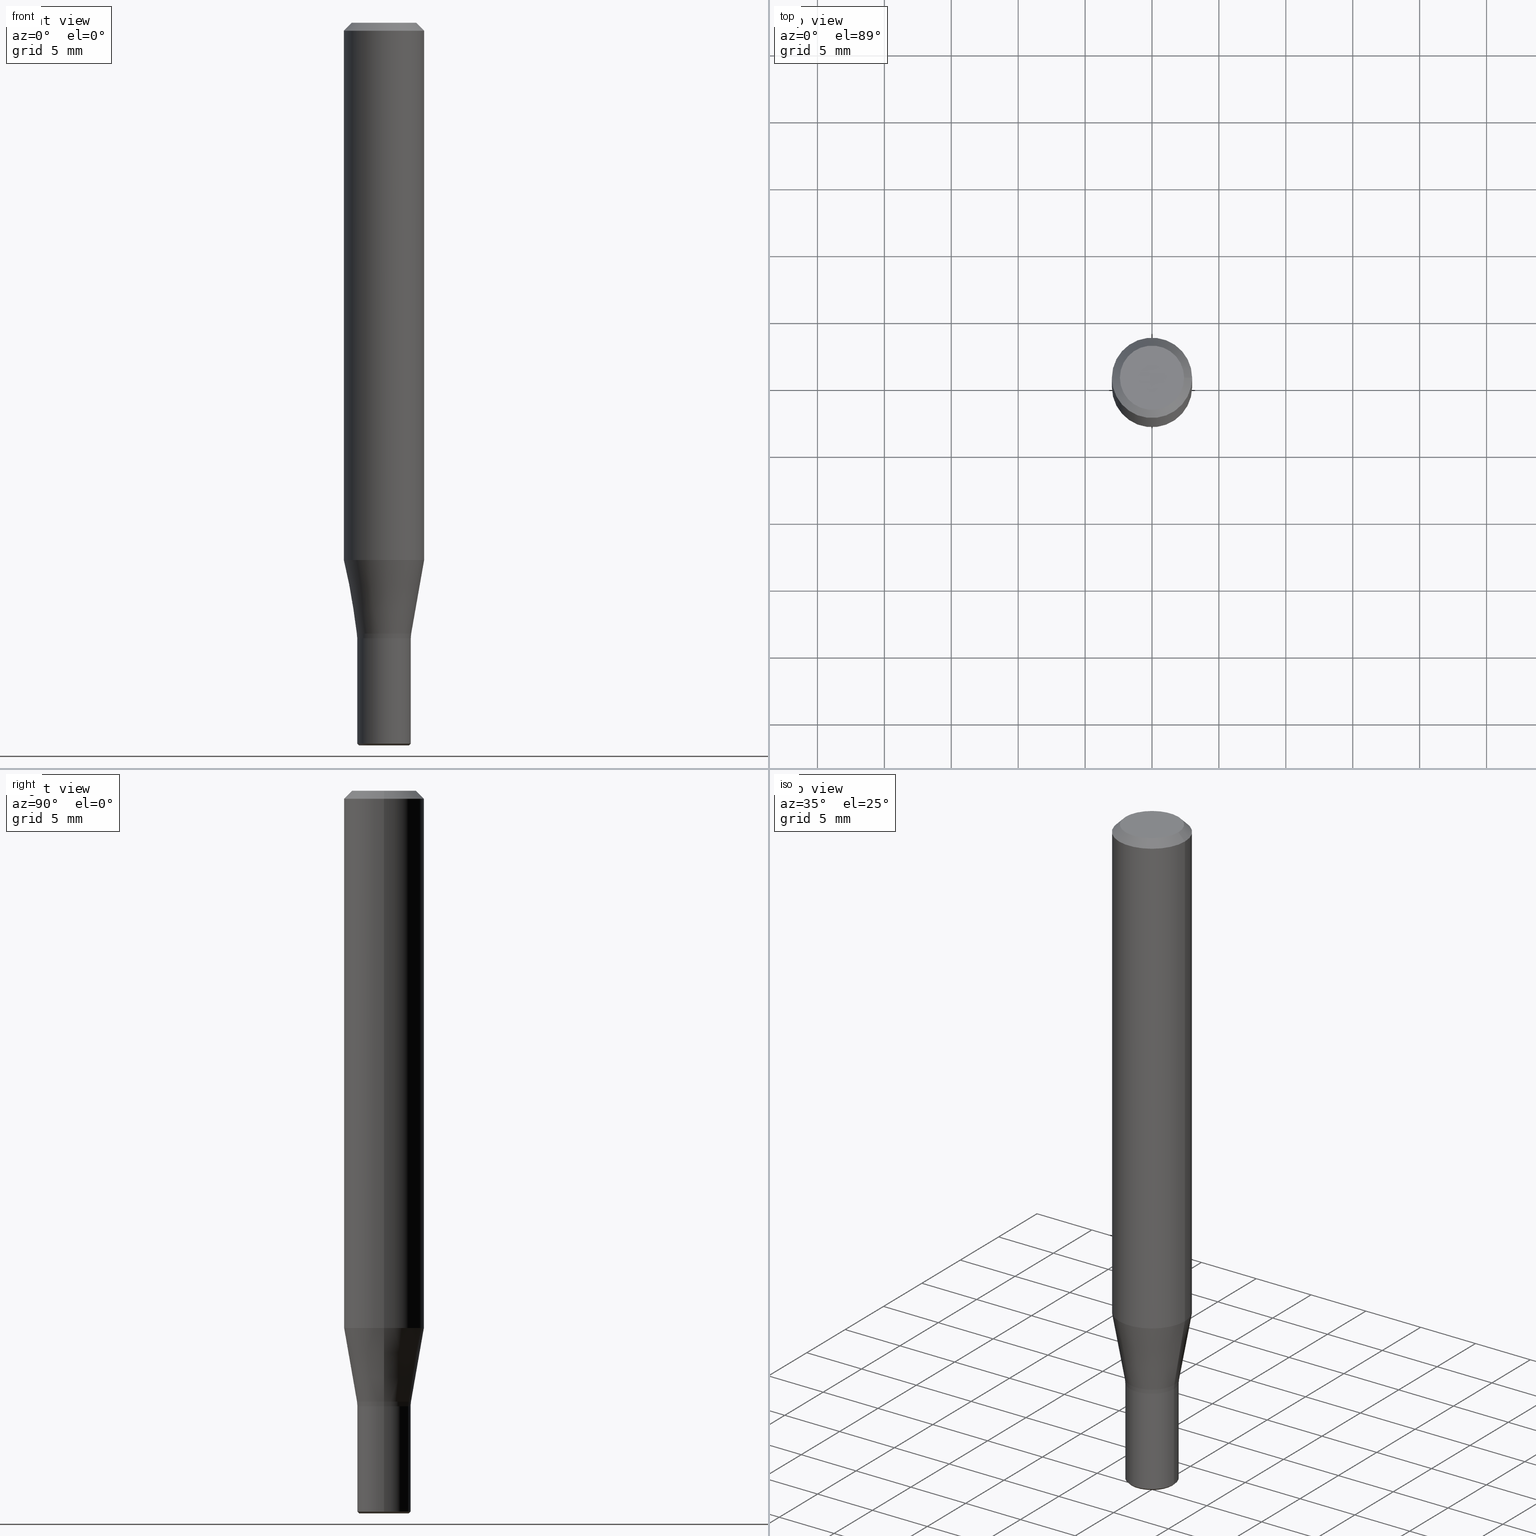
[diagram: canonical four-view strip — front | top / right | iso, engineering-drawing reading convention]
A machine part, canonical four-view strip (front | top / right | iso — engineering-drawing reading convention). The complete STEP part file that produces these views, byte-faithful:
ISO-10303-21;
HEADER;
FILE_DESCRIPTION (( 'STEP AP203' ),
    '1' );
FILE_NAME ('731.040.00.STEP',
    '2019-01-09T00:34:50',
    ( '' ),
    ( '' ),
    'SwSTEP 2.0',
    'SolidWorks 2019',
    '' );
FILE_SCHEMA (( 'CONFIG_CONTROL_DESIGN' ));
ENDSEC;

DATA;
#1 = CIRCLE ( 'NONE', #49, 2.000000000000025313 ) ;
#2 = LOCAL_TIME ( 1, 34, 50.00000000000000000, #118 ) ;
#3 = EDGE_LOOP ( 'NONE', ( #18 ) ) ;
#4 = FACE_OUTER_BOUND ( 'NONE', #238, .T. ) ;
#5 = EDGE_LOOP ( 'NONE', ( #37 ) ) ;
#6 = DIRECTION ( 'NONE',  ( 1.000000000000000000, 0.0000000000000000000, -7.392667979137421472E-15 ) ) ;
#7 = AXIS2_PLACEMENT_3D ( 'NONE', #55, #135, #219 ) ;
#8 = DIRECTION ( 'NONE',  ( 7.109998028014204707E-15, -0.0000000000000000000, 1.000000000000000000 ) ) ;
#9 = AXIS2_PLACEMENT_3D ( 'NONE', #138, #95, #75 ) ;
#10 = PERSON_AND_ORGANIZATION ( #155, #209 ) ;
#11 = FACE_OUTER_BOUND ( 'NONE', #5, .T. ) ;
#12 = CARTESIAN_POINT ( 'NONE',  ( 0.0000000000000000000, 0.0000000000000000000, 0.0000000000000000000 ) ) ;
#13 = DIRECTION ( 'NONE',  ( 6.982962677686266711E-15, 0.0000000000000000000, 1.000000000000000000 ) ) ;
#14 = APPROVAL_PERSON_ORGANIZATION ( #62, #57, #26 ) ;
#15 = CC_DESIGN_PERSON_AND_ORGANIZATION_ASSIGNMENT ( #175, #78, ( #246 ) ) ;
#16 = EDGE_LOOP ( 'NONE', ( #218 ) ) ;
#17 = DIRECTION ( 'NONE',  ( -1.000000000000000000, 0.0000000000000000000, 6.982962677686266711E-15 ) ) ;
#18 = ORIENTED_EDGE ( 'NONE', *, *, #263, .T. ) ;
#19 = DIRECTION ( 'NONE',  ( 0.0000000000000000000, 0.0000000000000000000, 1.000000000000000000 ) ) ;
#20 = EDGE_CURVE ( 'NONE', #222, #222, #173, .T. ) ;
#21 = DATE_TIME_ROLE ( 'creation_date' ) ;
#22 = APPROVAL_DATE_TIME ( #225, #57 ) ;
#23 = VERTEX_POINT ( 'NONE', #176 ) ;
#24 = AXIS2_PLACEMENT_3D ( 'NONE', #208, #47, #107 ) ;
#25 = CARTESIAN_POINT ( 'NONE',  ( -2.854930182845706564E-13, 0.0000000000000000000, -40.15374085333013454 ) ) ;
#26 = APPROVAL_ROLE ( '' ) ;
#27 = EDGE_CURVE ( 'NONE', #191, #191, #106, .T. ) ;
#28 = CALENDAR_DATE ( 2019, 9, 1 ) ;
#29 = DIRECTION ( 'NONE',  ( 6.982962677686266711E-15, 0.0000000000000000000, 1.000000000000000000 ) ) ;
#30 = APPROVAL_ROLE ( '' ) ;
#31 = CARTESIAN_POINT ( 'NONE',  ( -3.272878153394870430E-13, 0.0000000000000000000, -46.00000000000000000 ) ) ;
#32 = ADVANCED_FACE ( 'NONE', ( #48, #183 ), #89, .T. ) ;
#33 = AXIS2_PLACEMENT_3D ( 'NONE', #12, #82, #126 ) ;
#34 = DATE_AND_TIME ( #85, #240 ) ;
#35 = DIRECTION ( 'NONE',  ( 1.000000000000000000, 0.0000000000000000000, -6.938893903907225222E-15 ) ) ;
#36 = CARTESIAN_POINT ( 'NONE',  ( 6.056509442254067229E-14, 0.0000000000000000000, 8.673266236417621400 ) ) ;
#37 = ORIENTED_EDGE ( 'NONE', *, *, #20, .F. ) ;
#38 = ORIENTED_EDGE ( 'NONE', *, *, #64, .T. ) ;
#39 = APPLICATION_PROTOCOL_DEFINITION ( 'international standard', 'config_control_design', 1994, #114 ) ;
#40 = AXIS2_PLACEMENT_3D ( 'NONE', #120, #29, #207 ) ;
#41 = ADVANCED_FACE ( 'NONE', ( #162 ), #257, .T. ) ;
#42 = CARTESIAN_POINT ( 'NONE',  ( 2.999999999999732658, 0.0000000000000000000, -40.15374085333015586 ) ) ;
#43 = ORIENTED_EDGE ( 'NONE', *, *, #64, .F. ) ;
#44 = PERSON_AND_ORGANIZATION_ROLE ( 'creator' ) ;
#45 = ORIENTED_EDGE ( 'NONE', *, *, #27, .F. ) ;
#46 = PERSON_AND_ORGANIZATION_ROLE ( 'classification_officer' ) ;
#47 = DIRECTION ( 'NONE',  ( 1.019883235173059248E-14, 0.0000000000000000000, 1.000000000000000000 ) ) ;
#48 = FACE_OUTER_BOUND ( 'NONE', #250, .T. ) ;
#49 = AXIS2_PLACEMENT_3D ( 'NONE', #88, #52, #214 ) ;
#50 = CIRCLE ( 'NONE', #9, 1.870000000000021867 ) ;
#51 = APPLICATION_PROTOCOL_DEFINITION ( 'international standard', 'config_control_design', 1994, #237 ) ;
#52 = DIRECTION ( 'NONE',  ( -1.019883235173059248E-14, 0.0000000000000000000, -1.000000000000000000 ) ) ;
#53 = SECURITY_CLASSIFICATION ( '', '', #249 ) ;
#54 = FACE_BOUND ( 'NONE', #16, .T. ) ;
#55 = CARTESIAN_POINT ( 'NONE',  ( -3.245906328870931171E-13, 0.0000000000000000000, -45.65270364466613984 ) ) ;
#56 = APPROVAL_STATUS ( 'not_yet_approved' ) ;
#57 = APPROVAL ( #56, 'UNSPECIFIED' ) ;
#58 = UNCERTAINTY_MEASURE_WITH_UNIT (LENGTH_MEASURE( 1.000000000000000082E-05 ), #206, 'distance_accuracy_value', 'NONE');
#59 = PERSON_AND_ORGANIZATION ( #155, #209 ) ;
#60 = DIRECTION ( 'NONE',  ( 1.000000000000000000, 0.0000000000000000000, -6.938893903907187357E-15 ) ) ;
#61 = CIRCLE ( 'NONE', #152, 2.030384493975586402 ) ;
#62 = PERSON_AND_ORGANIZATION ( #155, #209 ) ;
#63 = PLANE ( 'NONE',  #76 ) ;
#64 = EDGE_CURVE ( 'NONE', #115, #115, #213, .T. ) ;
#65 = DESIGN_CONTEXT ( 'detailed design', #114, 'design' ) ;
#66 = CARTESIAN_POINT ( 'NONE',  ( -8.410045918268130563E-31, 0.0000000000000000000, -1.204366442504703962E-16 ) ) ;
#67 = DIRECTION ( 'NONE',  ( -1.000000000000000000, 0.0000000000000000000, 6.982962677686266711E-15 ) ) ;
#68 = CC_DESIGN_APPROVAL ( #187, ( #53 ) ) ;
#69 = ADVANCED_FACE ( 'NONE', ( #226, #11 ), #127, .T. ) ;
#70 = MANIFOLD_SOLID_BREP ( 'K�rper in Z minus drehen[2]', #168 ) ;
#71 = EDGE_LOOP ( 'NONE', ( #198 ) ) ;
#72 = LOCAL_TIME ( 1, 34, 50.00000000000000000, #121 ) ;
#73 = CC_DESIGN_DATE_AND_TIME_ASSIGNMENT ( #102, #160, ( #53 ) ) ;
#74 = PERSON_AND_ORGANIZATION ( #155, #209 ) ;
#75 = DIRECTION ( 'NONE',  ( -1.000000000000000000, 0.0000000000000000000, 1.113191535386173416E-14 ) ) ;
#76 = AXIS2_PLACEMENT_3D ( 'NONE', #105, #81, #6 ) ;
#77 = ADVANCED_FACE ( 'NONE', ( #104, #211 ), #196, .T. ) ;
#78 = PERSON_AND_ORGANIZATION_ROLE ( 'design_supplier' ) ;
#79 = CARTESIAN_POINT ( 'NONE',  ( 1.999999999999673816, 0.0000000000000000000, -46.00000000000001421 ) ) ;
#80 = DIRECTION ( 'NONE',  ( 1.000000000000000000, 0.0000000000000000000, -6.835054074236505469E-15 ) ) ;
#81 = DIRECTION ( 'NONE',  ( 7.392667979137421472E-15, -0.0000000000000000000, 1.000000000000000000 ) ) ;
#82 = DIRECTION ( 'NONE',  ( -6.982962677686266711E-15, 0.0000000000000000000, -1.000000000000000000 ) ) ;
#83 = ADVANCED_FACE ( 'NONE', ( #188, #122 ), #233, .F. ) ;
#84 = APPROVAL_PERSON_ORGANIZATION ( #158, #187, #142 ) ;
#85 = CALENDAR_DATE ( 2019, 9, 1 ) ;
#86 = CARTESIAN_POINT ( 'NONE',  ( 2.999999999999995559, 0.0000000000000000000, -0.6000000000000241807 ) ) ;
#87 = CARTESIAN_POINT ( 'NONE',  ( -3.270599092886533503E-13, 0.0000000000000000000, -46.00000000000000000 ) ) ;
#88 = CARTESIAN_POINT ( 'NONE',  ( -4.014317058256533796E-13, 0.0000000000000000000, -53.86999999999999744 ) ) ;
#89 = CONICAL_SURFACE ( 'NONE', #33, 2.399999999999997691, 0.7853981633974476129 ) ;
#90 = ORIENTED_EDGE ( 'NONE', *, *, #263, .F. ) ;
#91 = EDGE_LOOP ( 'NONE', ( #262 ) ) ;
#92 = CIRCLE ( 'NONE', #113, 2.000000000000000888 ) ;
#93 = DIRECTION ( 'NONE',  ( 7.109998028014204707E-15, -0.0000000000000000000, 1.000000000000000000 ) ) ;
#94 = EDGE_LOOP ( 'NONE', ( #244 ) ) ;
#95 = DIRECTION ( 'NONE',  ( -1.019883235173059248E-14, 0.0000000000000000000, -1.000000000000000000 ) ) ;
#96 = CARTESIAN_POINT ( 'NONE',  ( -2.000000000000426770, 0.0000000000000000000, -53.86999999999997613 ) ) ;
#97 = CARTESIAN_POINT ( 'NONE',  ( -4.189777606611783692E-15, 0.0000000000000000000, -0.6000000000000033085 ) ) ;
#98 = PERSON_AND_ORGANIZATION ( #155, #209 ) ;
#99 = AXIS2_PLACEMENT_3D ( 'NONE', #216, #195, #17 ) ;
#100 = DIRECTION ( 'NONE',  ( -7.109998028014204707E-15, 0.0000000000000000000, -1.000000000000000000 ) ) ;
#101 = ORIENTED_EDGE ( 'NONE', *, *, #139, .F. ) ;
#102 = DATE_AND_TIME ( #205, #2 ) ;
#103 = CARTESIAN_POINT ( 'NONE',  ( 1.999999999999673816, 0.0000000000000000000, -46.00000000000001421 ) ) ;
#104 = FACE_OUTER_BOUND ( 'NONE', #91, .T. ) ;
#105 = CARTESIAN_POINT ( 'NONE',  ( -4.027575540313783029E-13, 0.0000000000000000000, -53.99999999999999289 ) ) ;
#106 = CIRCLE ( 'NONE', #239, 3.000000000000017764 ) ;
#107 = DIRECTION ( 'NONE',  ( 1.000000000000000000, 0.0000000000000000000, -1.113191535386173416E-14 ) ) ;
#108 = FACE_OUTER_BOUND ( 'NONE', #131, .T. ) ;
#109 = PLANE ( 'NONE',  #185 ) ;
#110 = EDGE_LOOP ( 'NONE', ( #43 ) ) ;
#111 = PERSON_AND_ORGANIZATION ( #155, #209 ) ;
#112 = ORIENTED_EDGE ( 'NONE', *, *, #215, .F. ) ;
#113 = AXIS2_PLACEMENT_3D ( 'NONE', #129, #234, #130 ) ;
#114 = APPLICATION_CONTEXT ( 'configuration controlled 3d designs of mechanical parts and assemblies' ) ;
#115 = VERTEX_POINT ( 'NONE', #166 ) ;
#116 = CALENDAR_DATE ( 2019, 9, 1 ) ;
#117 = DIRECTION ( 'NONE',  ( 1.000000000000000000, 0.0000000000000000000, -6.975033976323412122E-15 ) ) ;
#118 = COORDINATED_UNIVERSAL_TIME_OFFSET ( 1, 0, .AHEAD. ) ;
#119 = CC_DESIGN_PERSON_AND_ORGANIZATION_ASSIGNMENT ( #10, #44, ( #197 ) ) ;
#120 = CARTESIAN_POINT ( 'NONE',  ( -3.770799845950583519E-13, 0.0000000000000000000, -53.99999999999999289 ) ) ;
#121 = COORDINATED_UNIVERSAL_TIME_OFFSET ( 1, 0, .AHEAD. ) ;
#122 = FACE_OUTER_BOUND ( 'NONE', #221, .T. ) ;
#123 = VERTEX_POINT ( 'NONE', #79 ) ;
#124 = CC_DESIGN_APPROVAL ( #57, ( #246 ) ) ;
#125 = CC_DESIGN_PERSON_AND_ORGANIZATION_ASSIGNMENT ( #98, #224, ( #246 ) ) ;
#126 = DIRECTION ( 'NONE',  ( -1.000000000000000000, 0.0000000000000000000, 6.982962677686266711E-15 ) ) ;
#127 = CYLINDRICAL_SURFACE ( 'NONE', #40, 3.000000000000017764 ) ;
#128 = DIRECTION ( 'NONE',  ( 1.000000000000000000, 0.0000000000000000000, -7.806255641895564083E-15 ) ) ;
#129 = CARTESIAN_POINT ( 'NONE',  ( -3.270599092886533503E-13, 0.0000000000000000000, -46.00000000000000000 ) ) ;
#130 = DIRECTION ( 'NONE',  ( 1.000000000000000000, 0.0000000000000000000, -6.938893903907225222E-15 ) ) ;
#131 = EDGE_LOOP ( 'NONE', ( #112 ) ) ;
#132 = CONICAL_SURFACE ( 'NONE', #7, 2.030384493975586402, 0.1745329251994261199 ) ;
#133 = CC_DESIGN_PERSON_AND_ORGANIZATION_ASSIGNMENT ( #59, #46, ( #53 ) ) ;
#134 = PERSON_AND_ORGANIZATION_ROLE ( 'design_owner' ) ;
#135 = DIRECTION ( 'NONE',  ( 7.109998028014204707E-15, -0.0000000000000000000, 1.000000000000000000 ) ) ;
#136 = EDGE_LOOP ( 'NONE', ( #101 ) ) ;
#137 = AXIS2_PLACEMENT_3D ( 'NONE', #97, #203, #117 ) ;
#138 = CARTESIAN_POINT ( 'NONE',  ( -4.027575540313782019E-13, 0.0000000000000000000, -53.99999999999998579 ) ) ;
#139 = EDGE_CURVE ( 'NONE', #260, #260, #61, .T. ) ;
#140 = COORDINATED_UNIVERSAL_TIME_OFFSET ( 1, 0, .AHEAD. ) ;
#141 = CC_DESIGN_SECURITY_CLASSIFICATION ( #53, ( #246 ) ) ;
#142 = APPROVAL_ROLE ( '' ) ;
#143 = APPROVAL ( #151, 'UNSPECIFIED' ) ;
#144 = AXIS2_PLACEMENT_3D ( 'NONE', #66, #230, #146 ) ;
#145 = APPROVAL_PERSON_ORGANIZATION ( #111, #143, #30 ) ;
#146 = DIRECTION ( 'NONE',  ( 1.000000000000000000, 0.0000000000000000000, -6.982962677686266711E-15 ) ) ;
#147 = FACE_OUTER_BOUND ( 'NONE', #71, .T. ) ;
#148 = CYLINDRICAL_SURFACE ( 'NONE', #253, 2.000000000000017319 ) ;
#149 = MECHANICAL_CONTEXT ( 'NONE', #237, 'mechanical' ) ;
#150 = CC_DESIGN_PERSON_AND_ORGANIZATION_ASSIGNMENT ( #74, #134, ( #190 ) ) ;
#151 = APPROVAL_STATUS ( 'not_yet_approved' ) ;
#152 = AXIS2_PLACEMENT_3D ( 'NONE', #159, #8, #80 ) ;
#153 = FACE_OUTER_BOUND ( 'NONE', #94, .T. ) ;
#154 = ADVANCED_FACE ( 'NONE', ( #256 ), #63, .F. ) ;
#155 = PERSON ( 'UNSPECIFIED', 'UNSPECIFIED', 'UNSPECIFIED', ('UNSPECIFIED'), ('UNSPECIFIED'), ('UNSPECIFIED') ) ;
#156 = CIRCLE ( 'NONE', #186, 2.000000000000000888 ) ;
#157 = APPROVAL_DATE_TIME ( #200, #143 ) ;
#158 = PERSON_AND_ORGANIZATION ( #155, #209 ) ;
#159 = CARTESIAN_POINT ( 'NONE',  ( -3.245906328870931171E-13, 0.0000000000000000000, -45.65270364466613984 ) ) ;
#160 = DATE_TIME_ROLE ( 'classification_date' ) ;
#161 = LOCAL_TIME ( 1, 34, 50.00000000000000000, #251 ) ;
#162 = FACE_OUTER_BOUND ( 'NONE', #178, .T. ) ;
#163 = AXIS2_PLACEMENT_3D ( 'NONE', #31, #180, #252 ) ;
#164 = LOCAL_TIME ( 1, 34, 50.00000000000000000, #140 ) ;
#165 = DIRECTION ( 'NONE',  ( 1.000000000000000000, 0.0000000000000000000, -6.982962677686266711E-15 ) ) ;
#166 = CARTESIAN_POINT ( 'NONE',  ( 2.399999999999997691, 0.0000000000000000000, -1.675911042644702433E-14 ) ) ;
#167 = ADVANCED_FACE ( 'NONE', ( #153 ), #109, .T. ) ;
#168 = CLOSED_SHELL ( 'NONE', ( #217, #202, #77, #154 ) ) ;
#169 = ORIENTED_EDGE ( 'NONE', *, *, #20, .T. ) ;
#170 = EDGE_LOOP ( 'NONE', ( #45 ) ) ;
#171 = DATE_AND_TIME ( #227, #72 ) ;
#172 = VERTEX_POINT ( 'NONE', #103 ) ;
#173 = CIRCLE ( 'NONE', #137, 3.000000000000000000 ) ;
#174 = AXIS2_PLACEMENT_3D ( 'NONE', #229, #19, #194 ) ;
#175 = PERSON_AND_ORGANIZATION ( #155, #209 ) ;
#176 = CARTESIAN_POINT ( 'NONE',  ( -1.870000000000424434, 0.0000000000000000000, -53.99999999999996447 ) ) ;
#177 = CC_DESIGN_DATE_AND_TIME_ASSIGNMENT ( #171, #21, ( #197 ) ) ;
#178 = EDGE_LOOP ( 'NONE', ( #38 ) ) ;
#179 = APPROVAL_STATUS ( 'not_yet_approved' ) ;
#180 = DIRECTION ( 'NONE',  ( 7.109998028014204707E-15, -0.0000000000000000000, 1.000000000000000000 ) ) ;
#181 = CC_DESIGN_APPROVAL ( #143, ( #197 ) ) ;
#182 = SHAPE_DEFINITION_REPRESENTATION ( #232, #210 ) ;
#183 = FACE_BOUND ( 'NONE', #110, .T. ) ;
#184 = CARTESIAN_POINT ( 'NONE',  ( 0.0000000000000000000, 0.0000000000000000000, 0.0000000000000000000 ) ) ;
#185 = AXIS2_PLACEMENT_3D ( 'NONE', #245, #201, #67 ) ;
#186 = AXIS2_PLACEMENT_3D ( 'NONE', #87, #93, #35 ) ;
#187 = APPROVAL ( #179, 'UNSPECIFIED' ) ;
#188 = FACE_OUTER_BOUND ( 'NONE', #136, .T. ) ;
#189 =( NAMED_UNIT ( * ) SI_UNIT ( $, .STERADIAN. ) SOLID_ANGLE_UNIT ( ) );
#190 = PRODUCT ( '731.040.00', '731.040.00', '', ( #149 ) ) ;
#191 = VERTEX_POINT ( 'NONE', #42 ) ;
#192 = EDGE_CURVE ( 'NONE', #123, #123, #92, .T. ) ;
#193 = ORIENTED_EDGE ( 'NONE', *, *, #228, .T. ) ;
#194 = DIRECTION ( 'NONE',  ( 1.000000000000000000, 0.0000000000000000000, 0.0000000000000000000 ) ) ;
#195 = DIRECTION ( 'NONE',  ( -6.982962677686266711E-15, 0.0000000000000000000, -1.000000000000000000 ) ) ;
#196 = CONICAL_SURFACE ( 'NONE', #24, 1.870000000000021867, 0.7853981633974950194 ) ;
#197 = PRODUCT_DEFINITION ( 'UNKNOWN', '', #246, #65 ) ;
#198 = ORIENTED_EDGE ( 'NONE', *, *, #192, .F. ) ;
#199 = PLANE ( 'NONE',  #99 ) ;
#200 = DATE_AND_TIME ( #28, #161 ) ;
#201 = DIRECTION ( 'NONE',  ( -6.982962677686266711E-15, 0.0000000000000000000, -1.000000000000000000 ) ) ;
#202 = ADVANCED_FACE ( 'NONE', ( #147, #108 ), #148, .T. ) ;
#203 = DIRECTION ( 'NONE',  ( 6.982962677686266711E-15, 0.0000000000000000000, 1.000000000000000000 ) ) ;
#204 = AXIS2_PLACEMENT_3D ( 'NONE', #184, #13, #165 ) ;
#205 = CALENDAR_DATE ( 2019, 9, 1 ) ;
#206 =( LENGTH_UNIT ( ) NAMED_UNIT ( * ) SI_UNIT ( .MILLI., .METRE. ) );
#207 = DIRECTION ( 'NONE',  ( 1.000000000000000000, 0.0000000000000000000, -6.938893903907187357E-15 ) ) ;
#208 = CARTESIAN_POINT ( 'NONE',  ( -4.027575540313782019E-13, 0.0000000000000000000, -53.99999999999998579 ) ) ;
#209 = ORGANIZATION ( 'UNSPECIFIED', 'UNSPECIFIED', '' ) ;
#210 = ADVANCED_BREP_SHAPE_REPRESENTATION ( '731.040.00', ( #261, #70, #174 ), #258 ) ;
#211 = FACE_BOUND ( 'NONE', #247, .T. ) ;
#212 = COORDINATED_UNIVERSAL_TIME_OFFSET ( 1, 0, .AHEAD. ) ;
#213 = CIRCLE ( 'NONE', #204, 2.399999999999997691 ) ;
#214 = DIRECTION ( 'NONE',  ( -1.000000000000000000, 0.0000000000000000000, 1.040834085586071162E-14 ) ) ;
#215 = EDGE_CURVE ( 'NONE', #248, #248, #1, .T. ) ;
#216 = CARTESIAN_POINT ( 'NONE',  ( -3.212162831735682182E-13, 0.0000000000000000000, -46.00000000000000000 ) ) ;
#217 = ADVANCED_FACE ( 'NONE', ( #4 ), #199, .F. ) ;
#218 = ORIENTED_EDGE ( 'NONE', *, *, #139, .T. ) ;
#219 = DIRECTION ( 'NONE',  ( 1.000000000000000000, 0.0000000000000000000, -6.835054074236505469E-15 ) ) ;
#220 = CLOSED_SHELL ( 'NONE', ( #41, #32, #69, #254, #83, #167 ) ) ;
#221 = EDGE_LOOP ( 'NONE', ( #193 ) ) ;
#222 = VERTEX_POINT ( 'NONE', #86 ) ;
#223 = ORIENTED_EDGE ( 'NONE', *, *, #192, .T. ) ;
#224 = PERSON_AND_ORGANIZATION_ROLE ( 'creator' ) ;
#225 = DATE_AND_TIME ( #116, #164 ) ;
#226 = FACE_OUTER_BOUND ( 'NONE', #170, .T. ) ;
#227 = CALENDAR_DATE ( 2019, 9, 1 ) ;
#228 = EDGE_CURVE ( 'NONE', #172, #172, #156, .T. ) ;
#229 = CARTESIAN_POINT ( 'NONE',  ( 0.0000000000000000000, 0.0000000000000000000, 0.0000000000000000000 ) ) ;
#230 = DIRECTION ( 'NONE',  ( 6.982962677686266711E-15, 0.0000000000000000000, 1.000000000000000000 ) ) ;
#231 = CARTESIAN_POINT ( 'NONE',  ( 2.030384493975261773, 0.0000000000000000000, -45.65270364466615405 ) ) ;
#232 = PRODUCT_DEFINITION_SHAPE ( 'NONE', 'NONE',  #197 ) ;
#233 = TOROIDAL_SURFACE ( 'NONE', #163, 3.999999999999999112, 1.999999999999997780 ) ;
#234 = DIRECTION ( 'NONE',  ( 7.109998028014204707E-15, -0.0000000000000000000, 1.000000000000000000 ) ) ;
#235 = DIRECTION ( 'NONE',  ( 7.392667979137421472E-15, -0.0000000000000000000, 1.000000000000000000 ) ) ;
#236 = ORIENTED_EDGE ( 'NONE', *, *, #27, .T. ) ;
#237 = APPLICATION_CONTEXT ( 'configuration controlled 3d designs of mechanical parts and assemblies' ) ;
#238 = EDGE_LOOP ( 'NONE', ( #223 ) ) ;
#239 = AXIS2_PLACEMENT_3D ( 'NONE', #25, #100, #60 ) ;
#240 = LOCAL_TIME ( 1, 34, 50.00000000000000000, #212 ) ;
#241 = PRODUCT_RELATED_PRODUCT_CATEGORY ( 'detail', '', ( #190 ) ) ;
#242 = EDGE_LOOP ( 'NONE', ( #236 ) ) ;
#243 = FACE_OUTER_BOUND ( 'NONE', #242, .T. ) ;
#244 = ORIENTED_EDGE ( 'NONE', *, *, #228, .F. ) ;
#245 = CARTESIAN_POINT ( 'NONE',  ( -3.212162831735682182E-13, 0.0000000000000000000, -46.00000000000000000 ) ) ;
#246 = PRODUCT_DEFINITION_FORMATION_WITH_SPECIFIED_SOURCE ( 'ANY', '', #190, .NOT_KNOWN. ) ;
#247 = EDGE_LOOP ( 'NONE', ( #90 ) ) ;
#248 = VERTEX_POINT ( 'NONE', #96 ) ;
#249 = SECURITY_CLASSIFICATION_LEVEL ( 'unclassified' ) ;
#250 = EDGE_LOOP ( 'NONE', ( #169 ) ) ;
#251 = COORDINATED_UNIVERSAL_TIME_OFFSET ( 1, 0, .AHEAD. ) ;
#252 = DIRECTION ( 'NONE',  ( 1.000000000000000000, 0.0000000000000000000, -7.109998028014204707E-15 ) ) ;
#253 = AXIS2_PLACEMENT_3D ( 'NONE', #36, #235, #128 ) ;
#254 = ADVANCED_FACE ( 'NONE', ( #243, #54 ), #132, .T. ) ;
#255 =( NAMED_UNIT ( * ) PLANE_ANGLE_UNIT ( ) SI_UNIT ( $, .RADIAN. ) );
#256 = FACE_OUTER_BOUND ( 'NONE', #3, .T. ) ;
#257 = PLANE ( 'NONE',  #144 ) ;
#258 =( GEOMETRIC_REPRESENTATION_CONTEXT ( 3 ) GLOBAL_UNCERTAINTY_ASSIGNED_CONTEXT ( ( #58 ) ) GLOBAL_UNIT_ASSIGNED_CONTEXT ( ( #206, #255, #189 ) ) REPRESENTATION_CONTEXT ( 'NONE', 'WORKASPACE' ) );
#259 = APPROVAL_DATE_TIME ( #34, #187 ) ;
#260 = VERTEX_POINT ( 'NONE', #231 ) ;
#261 = MANIFOLD_SOLID_BREP ( 'K�rper in Z minus drehen[1]', #220 ) ;
#262 = ORIENTED_EDGE ( 'NONE', *, *, #215, .T. ) ;
#263 = EDGE_CURVE ( 'NONE', #23, #23, #50, .T. ) ;
ENDSEC;
END-ISO-10303-21;
18396